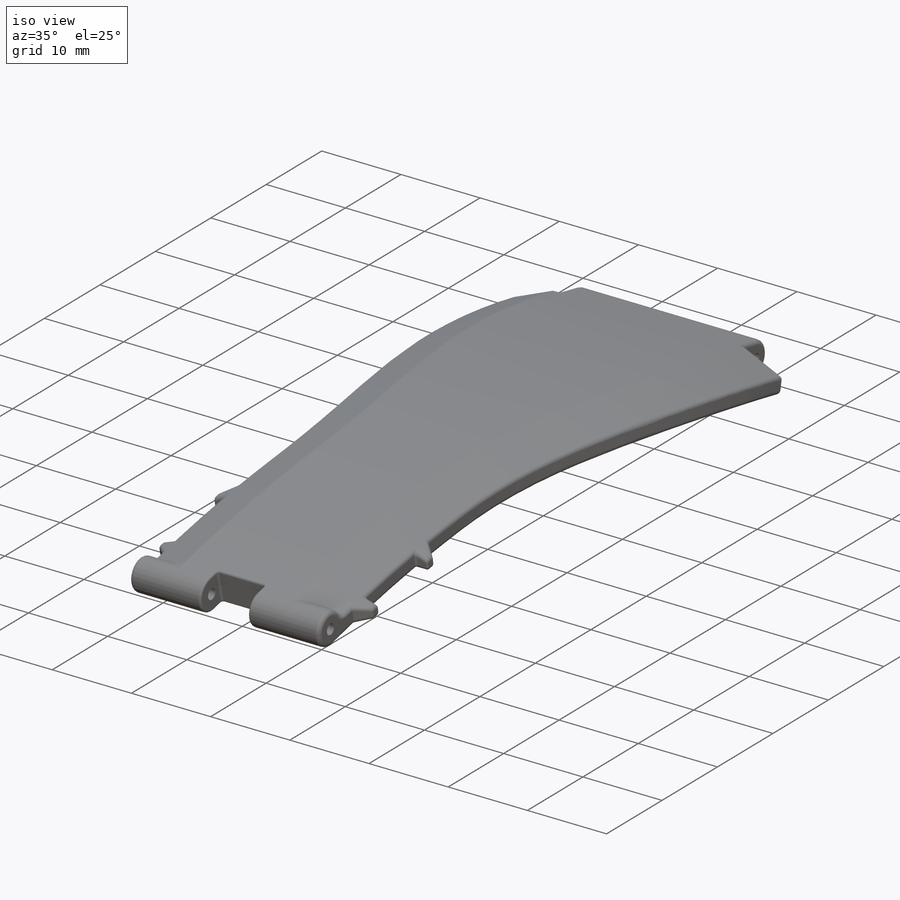
[diagram: iso view]
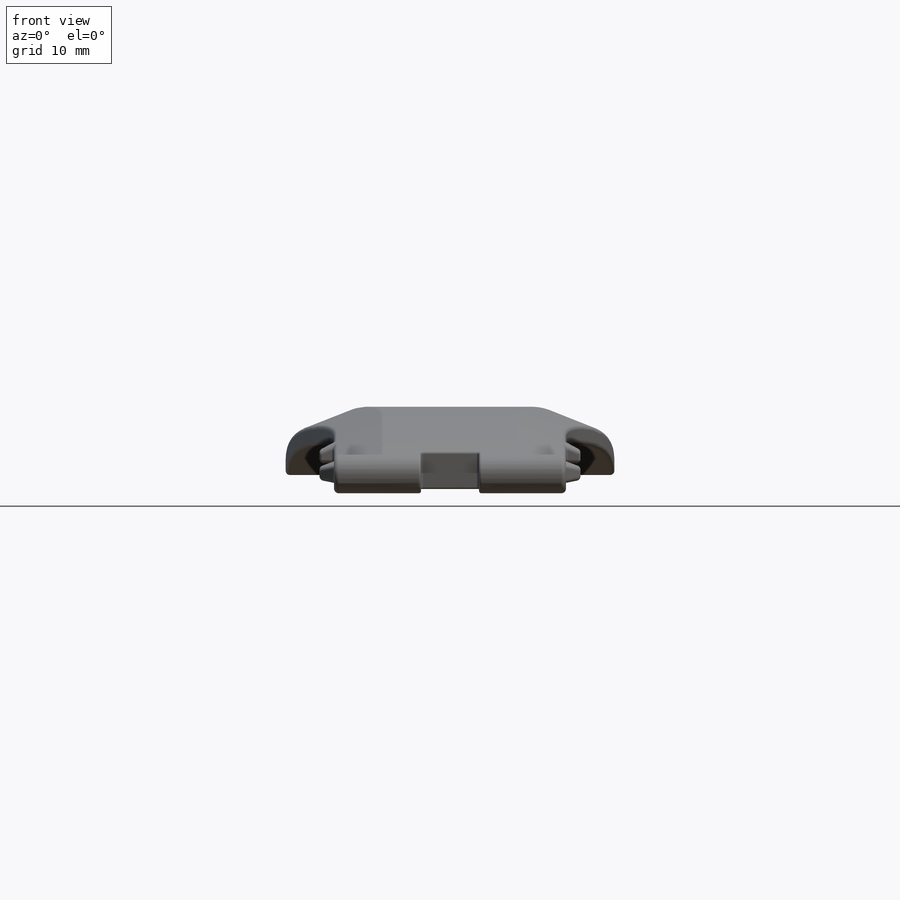
[diagram: front view]
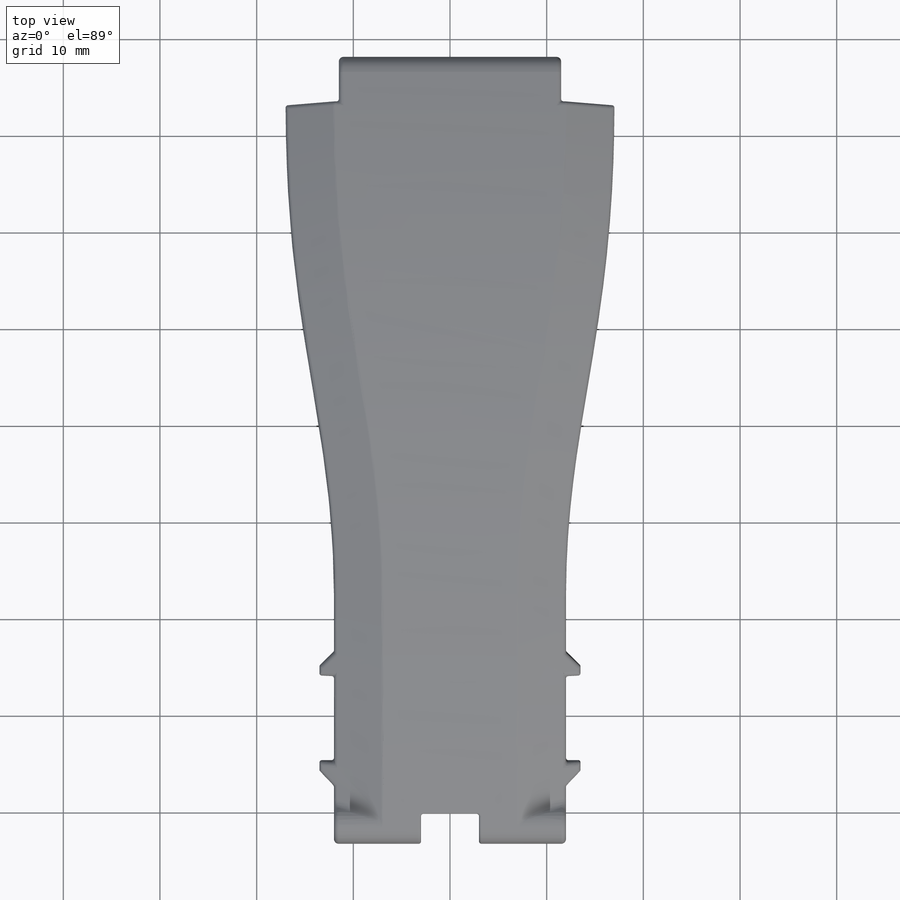
[diagram: top view]
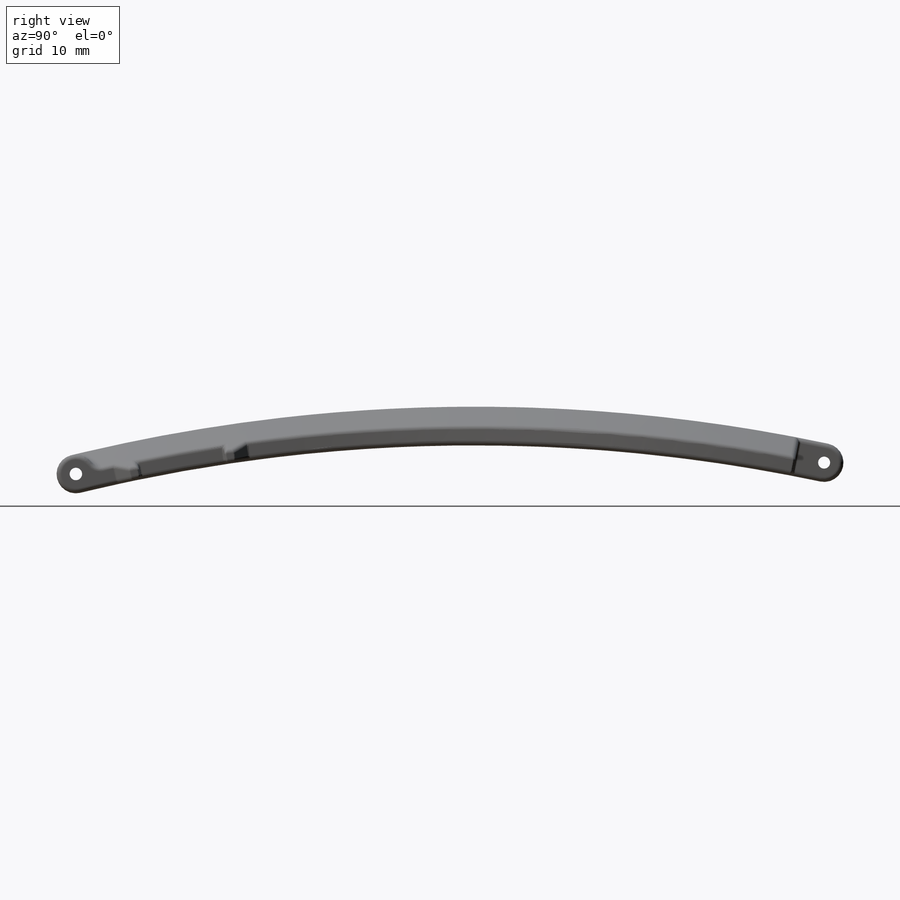
[diagram: right view]
SOLIDWORKS PART (.sldprt)
format: sldprt  version: not decoded by parser v0  size: 1,951,232 bytes
history: native  units: mm
features: sketch x10, cut_extrude x7, fillet x4, extrude x3, mirror x2, material x1, chamfer x1 (+11 scaffold rows collapsed)
feature tree (39):
  scaffold x11  (default folders/planes/origin — collapsed)
  material  "Material <not specified>"
  sketch  "Sketch1"  dims[D1=4.0mm D2=120.0mm]
  extrude  "Boss-Extrude1"  Depth=34mm
  sketch  "Sketch2"  dims[D1=5.0mm D2=23.0mm]
  cut_extrude  "Cut-Extrude2"  Depth=34mm
  sketch  "Sketch3"  dims[D1=24.0mm]
  cut_extrude  "Cut-Extrude3"  [1 undecoded]
  mirror  "Mirror1"
  chamfer  "Chamfer1"  Distance=5mm
  sketch  "Sketch10"  dims[D1=80.0mm]
  cut_extrude  "Cut-Extrude4"  [1 undecoded]
  sketch  "Sketch11"  dims[D1=4.0mm]
  extrude  "Boss-Extrude2"  Depth=24mm
  fillet  "Fillet1"  Radius=1mm
  sketch  "Sketch13"  dims[c1.D1=14.0mm c1.D2=1.5mm c1.D3=~2.617953mm c2.D3=45.0deg c2.D4=~3.707437mm c3.D4=45.0deg c3.D5=9.0mm c3.D6=6.0mm]
  extrude  "Boss-Extrude3"  [1 undecoded]
  mirror  "Mirror4"
  sketch  "Sketch14"
  cut_extrude  "Cut-Extrude6"  [1 undecoded]
  fillet  "Fillet3"  Radius=0.5mm
  fillet  "Fillet4"  Radius=0.25mm
  sketch  "Sketch18"  dims[D1=6.0mm D2=3.5mm]
  cut_extrude  "Cut-Extrude9"  Depth=47.5mm
  fillet  "Fillet5"  Radius=0.25mm
  sketch  "Sketch16"
  cut_extrude  "Cut-Extrude7"  [1 undecoded]
  sketch  "Sketch17"
  cut_extrude  "Cut-Extrude8"  [1 undecoded]
decode coverage: 16 of 27 modeling features carry decoded parameters
note: ~ marks probable driven/reference dimensions
note: 6 parameter values undecoded
summary: no parameter record found for 6 features
note: suppression state not decoded; provenance and decode notes live in map.json
